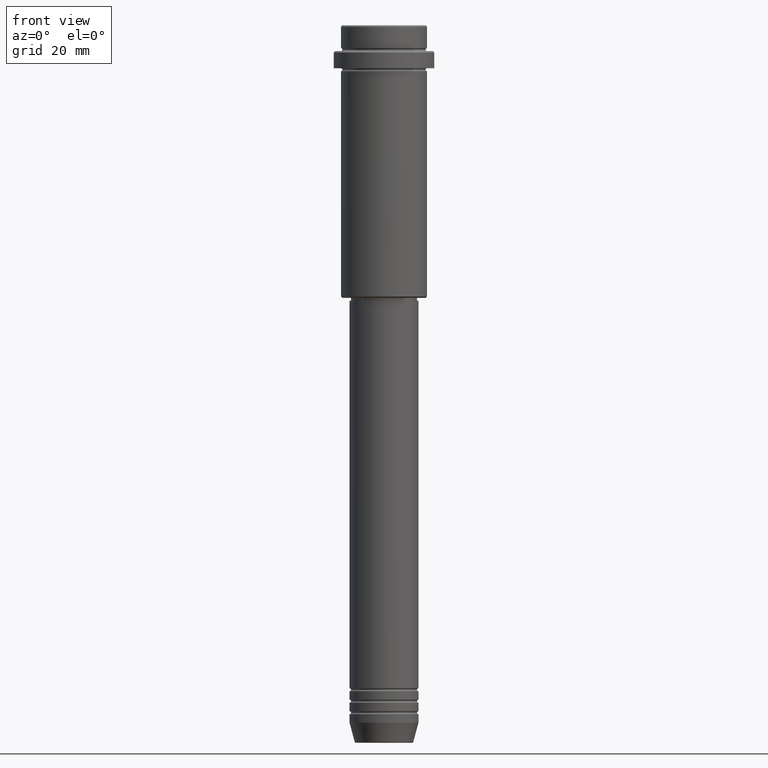
[diagram: clean part render]
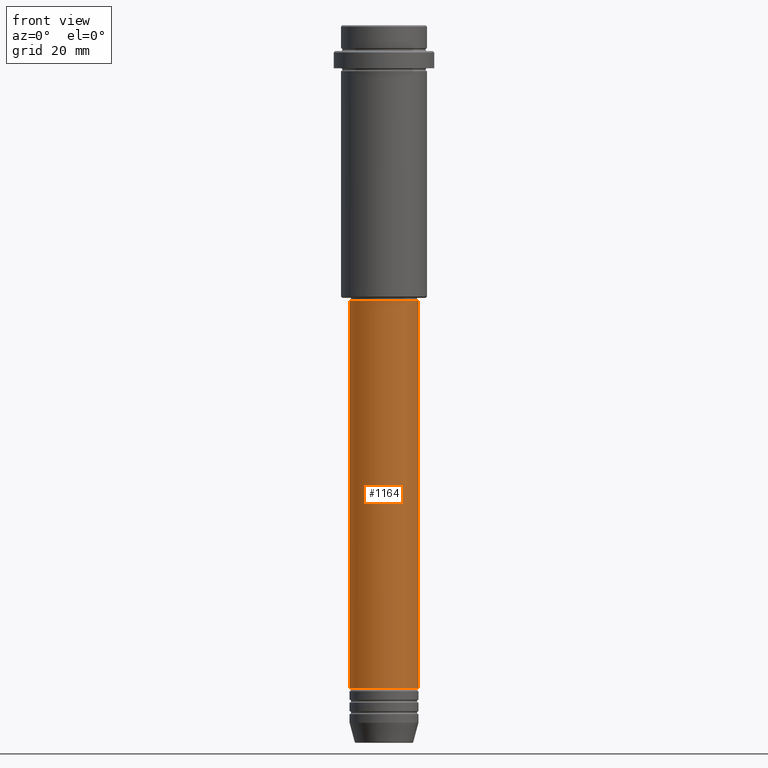
[diagram: same view with one face highlighted and labeled with its STEP entity id]
A machine part, front view. The second image highlights one B-rep face of the part: STEP entity #1164.
In plain terms, the highlighted cylindrical surface (edge-blend (fillet) strip) has radius 12 mm, axis along (-0, -0, 1).
Its self-contained STEP definition (entity closure, byte-faithful):
#34 = VERTEX_POINT ( 'NONE', #1183 ) ;
#67 = CARTESIAN_POINT ( 'NONE',  ( 0.000000000000000000, 0.000000000000000000, -96.00000000000000000 ) ) ;
#156 = CYLINDRICAL_SURFACE ( 'NONE', #1257, 12.00000000000000000 ) ;
#186 = DIRECTION ( 'NONE',  ( 1.000000000000000000, 0.000000000000000000, 0.000000000000000000 ) ) ;
#279 = CARTESIAN_POINT ( 'NONE',  ( 12.00000000000000000, 0.000000000000000000, -230.9999999999998863 ) ) ;
#287 = VECTOR ( 'NONE', #426, 1000.000000000000000 ) ;
#289 = DIRECTION ( 'NONE',  ( -0.000000000000000000, -0.000000000000000000, 1.000000000000000000 ) ) ;
#349 = VERTEX_POINT ( 'NONE', #1273 ) ;
#363 = FACE_OUTER_BOUND ( 'NONE', #1203, .T. ) ;
#381 = DIRECTION ( 'NONE',  ( 1.000000000000000000, 0.000000000000000000, 0.000000000000000000 ) ) ;
#416 = CARTESIAN_POINT ( 'NONE',  ( 11.99999999999999822, 0.000000000000000000, -96.00000000000000000 ) ) ;
#418 = ORIENTED_EDGE ( 'NONE', *, *, #1372, .T. ) ;
#426 = DIRECTION ( 'NONE',  ( -0.000000000000000000, -0.000000000000000000, 1.000000000000000000 ) ) ;
#476 = ORIENTED_EDGE ( 'NONE', *, *, #1210, .T. ) ;
#498 = VERTEX_POINT ( 'NONE', #416 ) ;
#581 = DIRECTION ( 'NONE',  ( -0.000000000000000000, -0.000000000000000000, 1.000000000000000000 ) ) ;
#634 = LINE ( 'NONE', #1078, #287 ) ;
#645 = CARTESIAN_POINT ( 'NONE',  ( 12.00000000000000000, 0.000000000000000000, 0.000000000000000000 ) ) ;
#797 = EDGE_CURVE ( 'NONE', #349, #498, #973, .T. ) ;
#800 = DIRECTION ( 'NONE',  ( 1.000000000000000000, 0.000000000000000000, 0.000000000000000000 ) ) ;
#822 = ORIENTED_EDGE ( 'NONE', *, *, #1417, .F. ) ;
#913 = ORIENTED_EDGE ( 'NONE', *, *, #797, .F. ) ;
#927 = CIRCLE ( 'NONE', #1094, 12.00000000000000000 ) ;
#964 = LINE ( 'NONE', #645, #1258 ) ;
#973 = CIRCLE ( 'NONE', #1348, 11.99999999999999822 ) ;
#1078 = CARTESIAN_POINT ( 'NONE',  ( -12.00000000000000000, 1.469576158976823947E-15, 0.000000000000000000 ) ) ;
#1094 = AXIS2_PLACEMENT_3D ( 'NONE', #1370, #289, #381 ) ;
#1164 = ADVANCED_FACE ( 'NONE', ( #363 ), #156, .T. ) ;
#1165 = DIRECTION ( 'NONE',  ( -0.000000000000000000, -0.000000000000000000, 1.000000000000000000 ) ) ;
#1183 = CARTESIAN_POINT ( 'NONE',  ( -12.00000000000000000, 1.469576158976823947E-15, -230.9999999999998863 ) ) ;
#1203 = EDGE_LOOP ( 'NONE', ( #822, #476, #418, #913 ) ) ;
#1210 = EDGE_CURVE ( 'NONE', #34, #1294, #927, .T. ) ;
#1257 = AXIS2_PLACEMENT_3D ( 'NONE', #1355, #581, #800 ) ;
#1258 = VECTOR ( 'NONE', #1402, 1000.000000000000000 ) ;
#1273 = CARTESIAN_POINT ( 'NONE',  ( -11.99999999999999822, 1.469576158976823750E-15, -96.00000000000000000 ) ) ;
#1294 = VERTEX_POINT ( 'NONE', #279 ) ;
#1348 = AXIS2_PLACEMENT_3D ( 'NONE', #67, #1165, #186 ) ;
#1355 = CARTESIAN_POINT ( 'NONE',  ( 0.000000000000000000, 0.000000000000000000, 0.000000000000000000 ) ) ;
#1370 = CARTESIAN_POINT ( 'NONE',  ( 0.000000000000000000, 0.000000000000000000, -230.9999999999998863 ) ) ;
#1372 = EDGE_CURVE ( 'NONE', #1294, #498, #964, .T. ) ;
#1402 = DIRECTION ( 'NONE',  ( -0.000000000000000000, -0.000000000000000000, 1.000000000000000000 ) ) ;
#1417 = EDGE_CURVE ( 'NONE', #34, #349, #634, .T. ) ;